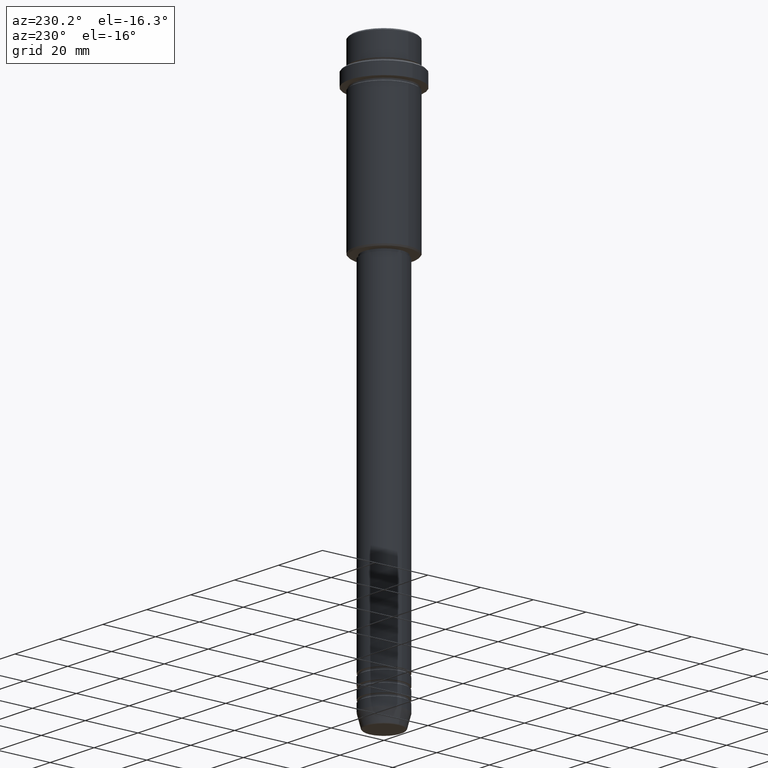
[diagram: clean part render]
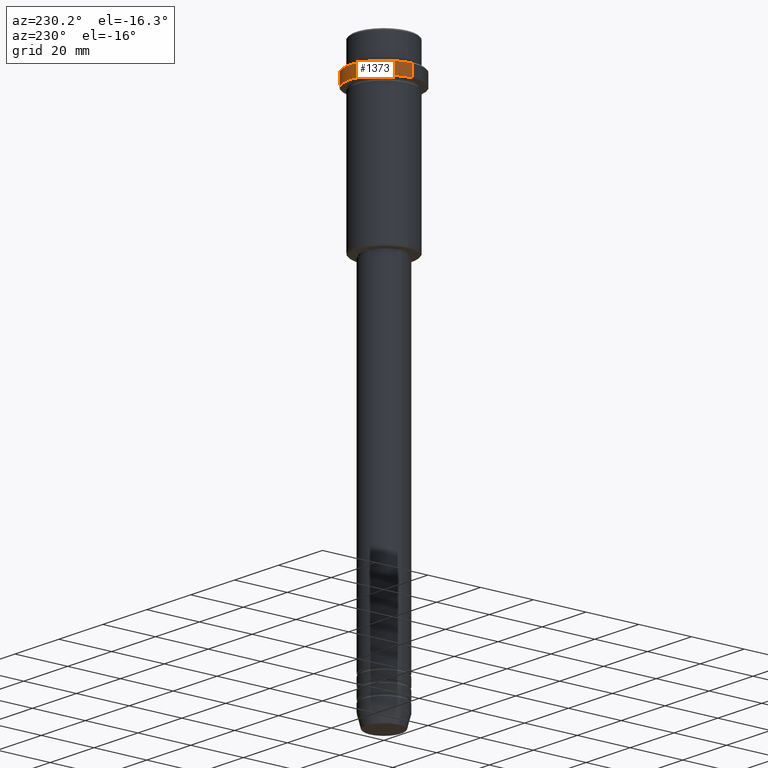
[diagram: same view with one face highlighted and labeled with its STEP entity id]
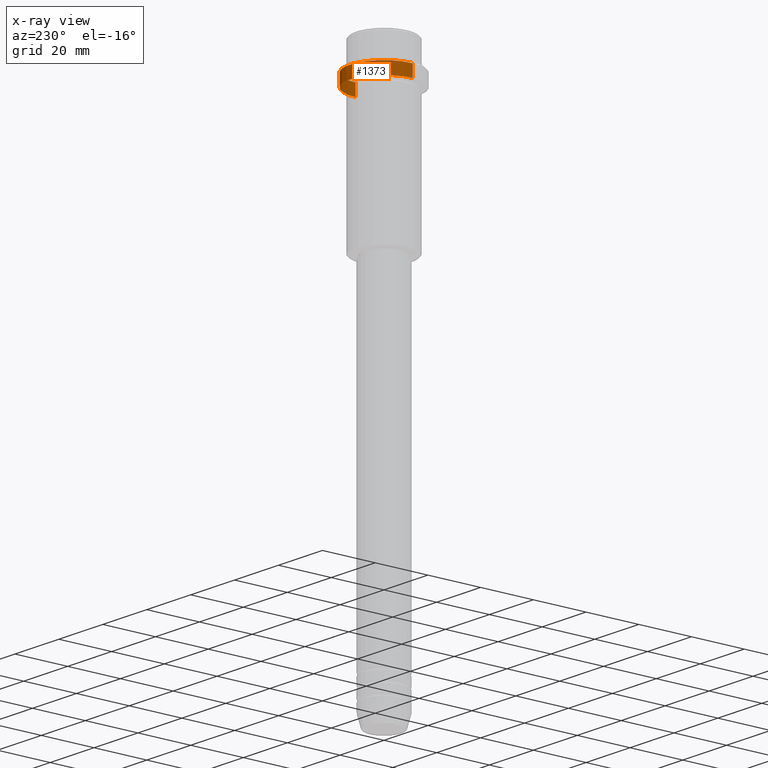
[diagram: x-ray of the same camera — body ghosted, the highlighted face saturated]
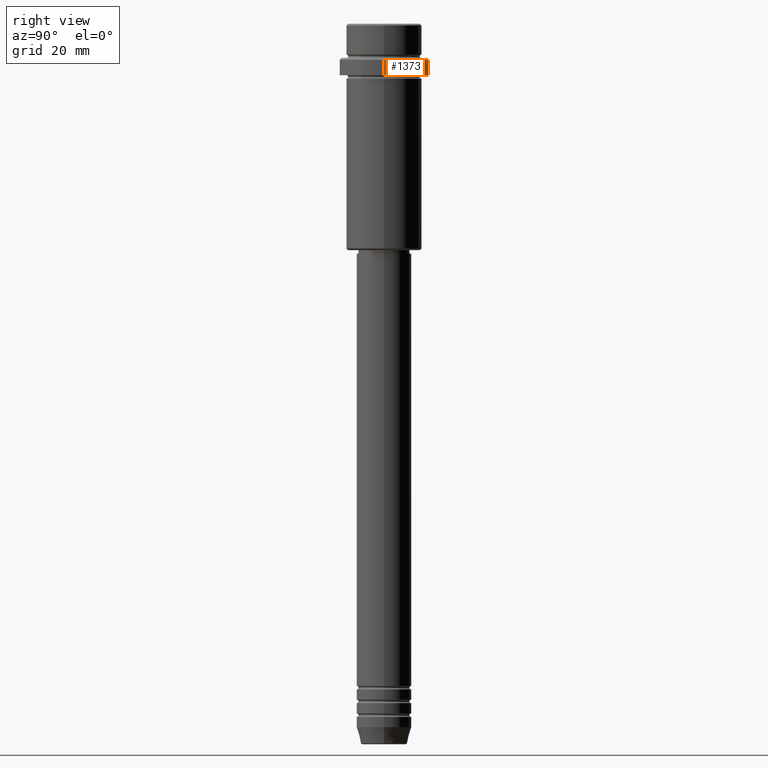
[diagram: same view with one face highlighted and labeled with its STEP entity id]
A machine part, auxiliary view. The second image highlights one B-rep face of the part: STEP entity #1373.
The next image is the same camera in x-ray: the body ghosted, the highlighted face saturated — about 0% of this face is hidden behind the body in this view.
A second angle (right view) of the same face is appended — the face is thin or edge-on in the first view.
In plain terms, the highlighted cylindrical surface (partial cylindrical patch) has radius 13 mm, axis along (-0, -0, 1).
Its self-contained STEP definition (entity closure, byte-faithful):
#26 = EDGE_CURVE ( 'NONE', #1416, #1109, #521, .T. ) ;
#52 = EDGE_CURVE ( 'NONE', #800, #1416, #1155, .T. ) ;
#56 = VECTOR ( 'NONE', #1304, 1000.000000000000000 ) ;
#62 = CYLINDRICAL_SURFACE ( 'NONE', #471, 13.00000000000000000 ) ;
#117 = DIRECTION ( 'NONE',  ( 1.000000000000000000, 0.000000000000000000, 0.000000000000000000 ) ) ;
#143 = DIRECTION ( 'NONE',  ( 1.000000000000000000, 0.000000000000000000, 0.000000000000000000 ) ) ;
#181 = EDGE_CURVE ( 'NONE', #800, #268, #1220, .T. ) ;
#205 = ORIENTED_EDGE ( 'NONE', *, *, #428, .T. ) ;
#242 = DIRECTION ( 'NONE',  ( -0.000000000000000000, -0.000000000000000000, 1.000000000000000000 ) ) ;
#258 = CARTESIAN_POINT ( 'NONE',  ( 0.000000000000000000, 0.000000000000000000, 0.000000000000000000 ) ) ;
#268 = VERTEX_POINT ( 'NONE', #650 ) ;
#282 = FACE_OUTER_BOUND ( 'NONE', #324, .T. ) ;
#324 = EDGE_LOOP ( 'NONE', ( #438, #753, #205, #818 ) ) ;
#376 = VECTOR ( 'NONE', #988, 1000.000000000000000 ) ;
#428 = EDGE_CURVE ( 'NONE', #1109, #268, #623, .T. ) ;
#438 = ORIENTED_EDGE ( 'NONE', *, *, #52, .T. ) ;
#471 = AXIS2_PLACEMENT_3D ( 'NONE', #258, #912, #143 ) ;
#474 = CARTESIAN_POINT ( 'NONE',  ( 0.000000000000000000, 0.000000000000000000, -10.49999999999998046 ) ) ;
#479 = CARTESIAN_POINT ( 'NONE',  ( 13.00000000000000000, 0.000000000000000000, -15.00000000000000178 ) ) ;
#521 = LINE ( 'NONE', #1299, #56 ) ;
#561 = CARTESIAN_POINT ( 'NONE',  ( 13.00000000000000000, 0.000000000000000000, 0.000000000000000000 ) ) ;
#570 = DIRECTION ( 'NONE',  ( 0.000000000000000000, 0.000000000000000000, -1.000000000000000000 ) ) ;
#622 = AXIS2_PLACEMENT_3D ( 'NONE', #1209, #242, #117 ) ;
#623 = CIRCLE ( 'NONE', #971, 13.00000000000000000 ) ;
#650 = CARTESIAN_POINT ( 'NONE',  ( 13.00000000000000000, 0.000000000000000000, -10.49999999999998046 ) ) ;
#688 = CARTESIAN_POINT ( 'NONE',  ( -13.00000000000000000, 1.592040838891559095E-15, -15.00000000000000178 ) ) ;
#753 = ORIENTED_EDGE ( 'NONE', *, *, #26, .T. ) ;
#800 = VERTEX_POINT ( 'NONE', #479 ) ;
#809 = DIRECTION ( 'NONE',  ( 1.000000000000000000, 0.000000000000000000, 0.000000000000000000 ) ) ;
#818 = ORIENTED_EDGE ( 'NONE', *, *, #181, .F. ) ;
#850 = CARTESIAN_POINT ( 'NONE',  ( -13.00000000000000000, 1.592040838891559095E-15, -10.49999999999998046 ) ) ;
#912 = DIRECTION ( 'NONE',  ( -0.000000000000000000, -0.000000000000000000, 1.000000000000000000 ) ) ;
#971 = AXIS2_PLACEMENT_3D ( 'NONE', #474, #570, #809 ) ;
#988 = DIRECTION ( 'NONE',  ( -0.000000000000000000, -0.000000000000000000, 1.000000000000000000 ) ) ;
#1109 = VERTEX_POINT ( 'NONE', #850 ) ;
#1155 = CIRCLE ( 'NONE', #622, 13.00000000000000000 ) ;
#1209 = CARTESIAN_POINT ( 'NONE',  ( 0.000000000000000000, 0.000000000000000000, -15.00000000000000178 ) ) ;
#1220 = LINE ( 'NONE', #561, #376 ) ;
#1299 = CARTESIAN_POINT ( 'NONE',  ( -13.00000000000000000, 1.592040838891559095E-15, 0.000000000000000000 ) ) ;
#1304 = DIRECTION ( 'NONE',  ( -0.000000000000000000, -0.000000000000000000, 1.000000000000000000 ) ) ;
#1373 = ADVANCED_FACE ( 'NONE', ( #282 ), #62, .T. ) ;
#1416 = VERTEX_POINT ( 'NONE', #688 ) ;